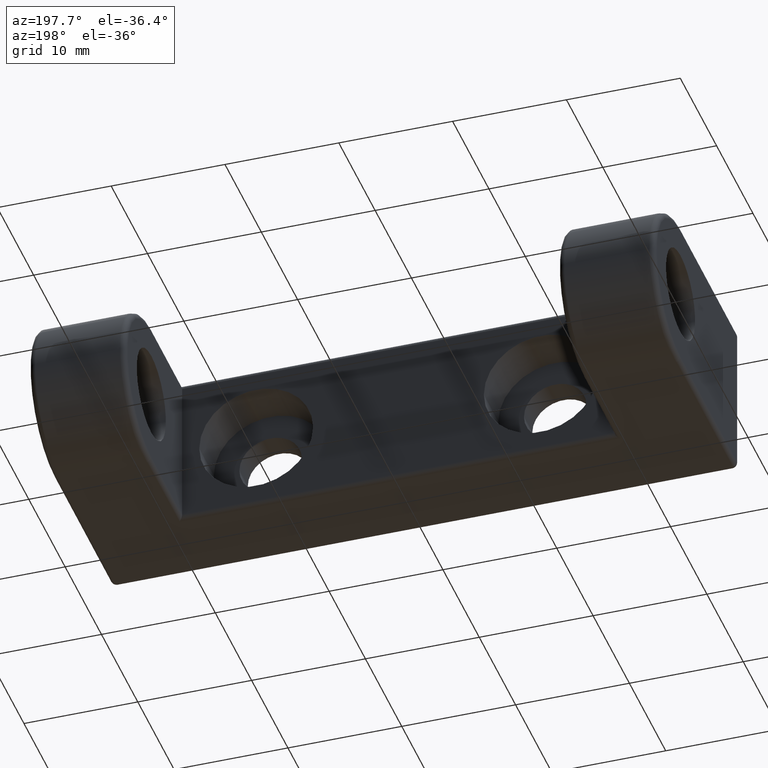
[diagram: clean part render]
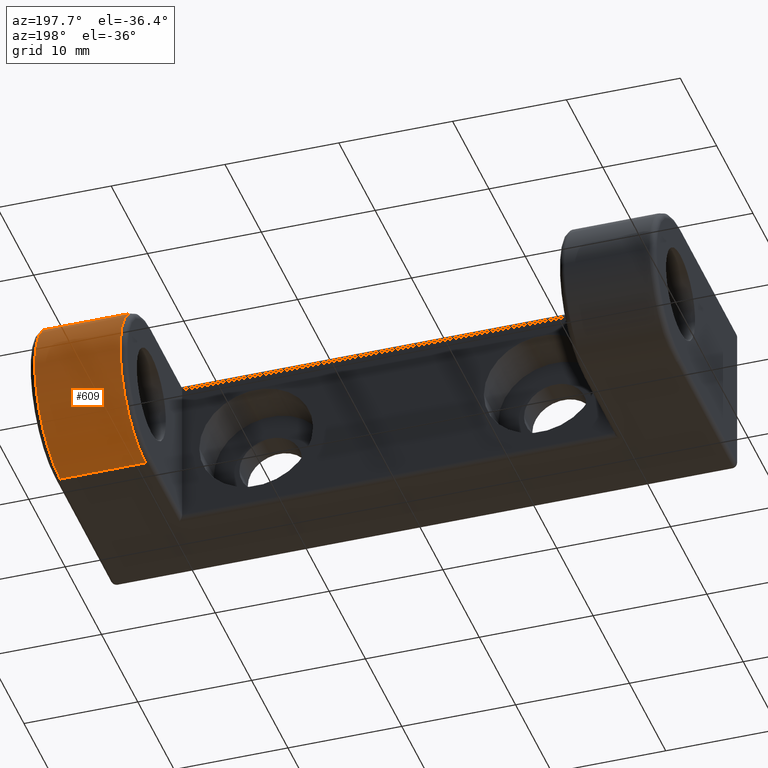
[diagram: same view with one face highlighted and labeled with its STEP entity id]
A machine part, auxiliary view. The second image highlights one B-rep face of the part: STEP entity #609.
In plain terms, the highlighted cylindrical surface (partial cylindrical patch) has radius 7 mm, axis along (1, 0, 0).
Its self-contained STEP definition (entity closure, byte-faithful):
#63=FACE_OUTER_BOUND('',#107,.T.);
#107=EDGE_LOOP('',(#445,#446,#447,#448));
#173=CIRCLE('',#664,7.);
#175=CIRCLE('',#668,7.);
#223=LINE('',#1010,#257);
#224=LINE('',#1013,#258);
#257=VECTOR('',#795,7.5);
#258=VECTOR('',#798,7.5);
#281=VERTEX_POINT('',#964);
#294=VERTEX_POINT('',#1001);
#295=VERTEX_POINT('',#1009);
#296=VERTEX_POINT('',#1011);
#351=EDGE_CURVE('',#294,#281,#173,.T.);
#355=EDGE_CURVE('',#295,#294,#223,.T.);
#356=EDGE_CURVE('',#296,#295,#175,.T.);
#357=EDGE_CURVE('',#296,#281,#224,.T.);
#445=ORIENTED_EDGE('',*,*,#351,.F.);
#446=ORIENTED_EDGE('',*,*,#355,.F.);
#447=ORIENTED_EDGE('',*,*,#356,.F.);
#448=ORIENTED_EDGE('',*,*,#357,.T.);
#583=CYLINDRICAL_SURFACE('',#667,7.);
#609=ADVANCED_FACE('',(#63),#583,.T.);
#664=AXIS2_PLACEMENT_3D('',#1003,#785,#786);
#667=AXIS2_PLACEMENT_3D('',#1008,#793,#794);
#668=AXIS2_PLACEMENT_3D('',#1012,#796,#797);
#785=DIRECTION('center_axis',(-1.,2.86509167645202E-16,0.));
#786=DIRECTION('ref_axis',(2.87468461733299E-16,1.,6.12323399573677E-17));
#793=DIRECTION('center_axis',(1.,1.88401482966693E-16,0.));
#794=DIRECTION('ref_axis',(0.,0.,1.));
#795=DIRECTION('',(-1.,-1.88401482966693E-16,0.));
#796=DIRECTION('center_axis',(1.,-1.93082265152201E-16,0.));
#797=DIRECTION('ref_axis',(1.88341405963196E-16,1.,6.12323399573677E-17));
#798=DIRECTION('',(-1.,-1.88401482966693E-16,0.));
#964=CARTESIAN_POINT('',(19.5,0.750000000000015,-7.));
#1001=CARTESIAN_POINT('',(19.5,0.750000000000015,7.));
#1003=CARTESIAN_POINT('Origin',(19.5,0.750000000000015,0.));
#1008=CARTESIAN_POINT('Origin',(-27.5,0.750000000000006,0.));
#1009=CARTESIAN_POINT('',(27.,0.750000000000016,7.));
#1010=CARTESIAN_POINT('',(-27.5,0.750000000000006,7.));
#1011=CARTESIAN_POINT('',(27.,0.750000000000016,-7.));
#1012=CARTESIAN_POINT('Origin',(27.,0.750000000000016,0.));
#1013=CARTESIAN_POINT('',(-27.5,0.750000000000006,-7.));